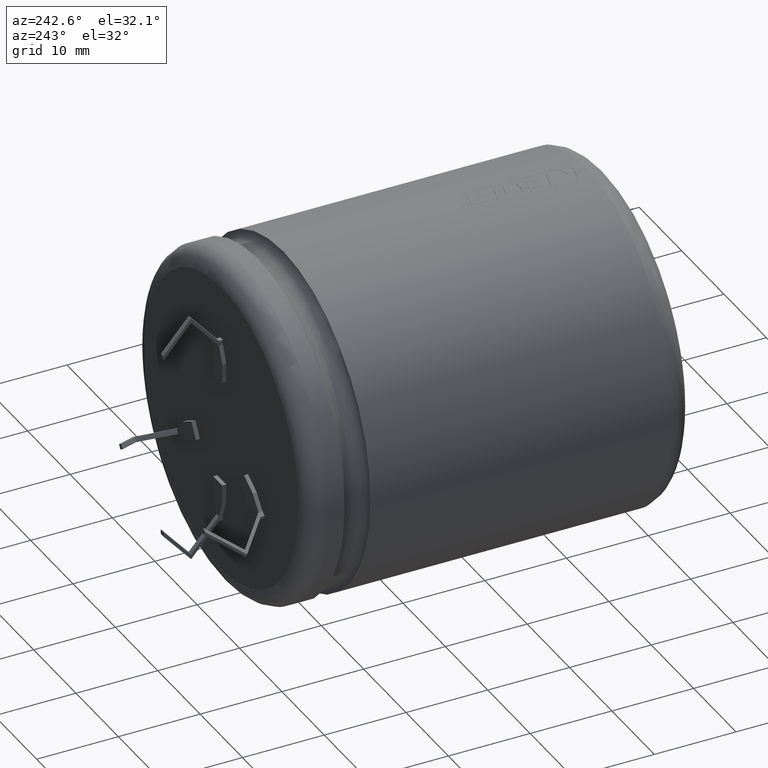
[diagram: clean part render]
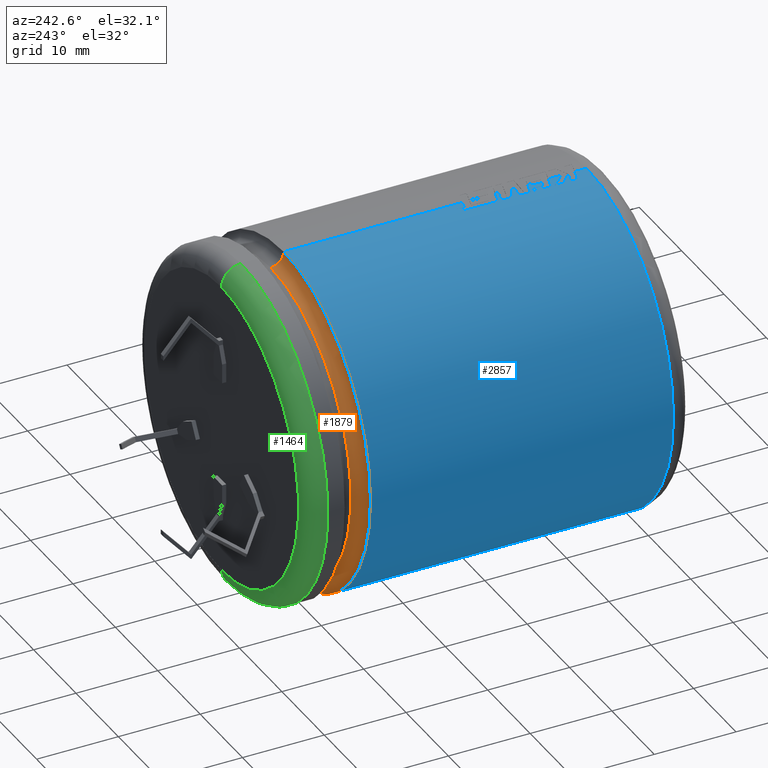
[diagram: same view with three faces highlighted in distinct colors, each labeled with its STEP entity id]
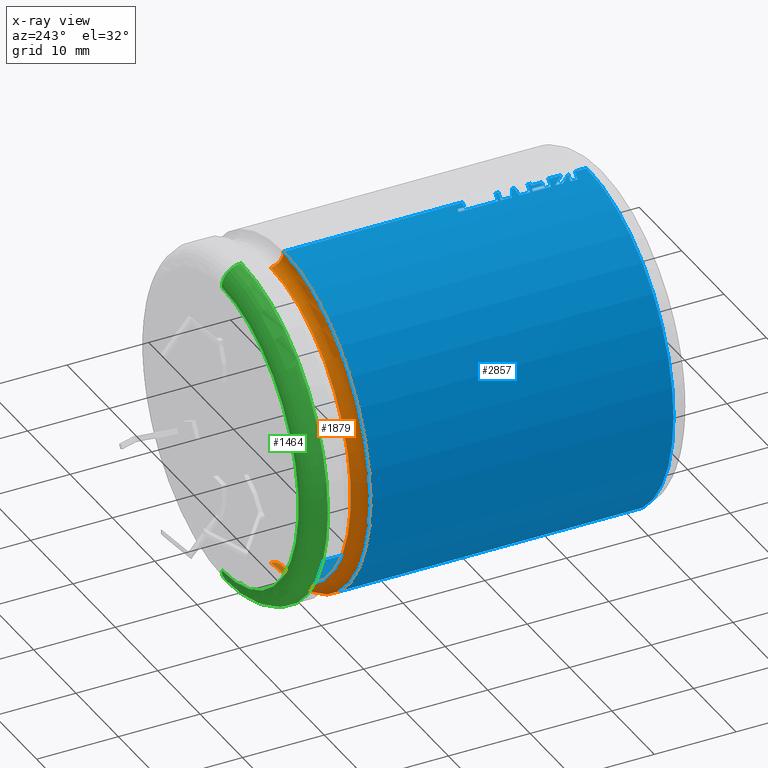
[diagram: x-ray of the same camera — body ghosted, the three highlighted faces saturated]
A machine part, auxiliary view with three faces highlighted in distinct colors.
The next image is the same camera in x-ray (body ghosted, the three faces saturated) — at least one of them is partly hidden behind the body in this view.
Their STEP definitions:

[orange] entity #1879 — the highlighted toroidal blend (fillet) surface has major radius 20.5 mm and minor (blend) radius 1.5769 mm.
#9 = CARTESIAN_POINT ( 'NONE',  ( 2.510525938252074500E-015, 41.00000000000000000, -20.50000000000000000 ) ) ;
#33 = CIRCLE ( 'NONE', #80, 1.576859999999999500 ) ;
#80 = AXIS2_PLACEMENT_3D ( 'NONE', #9, #3284, #3643 ) ;
#568 = DIRECTION ( 'NONE',  ( 0.0000000000000000000, 0.0000000000000000000, 1.000000000000000000 ) ) ;
#928 = CARTESIAN_POINT ( 'NONE',  ( 0.0000000000000000000, 41.00000000000000000, 0.0000000000000000000 ) ) ;
#1281 = DIRECTION ( 'NONE',  ( 0.0000000000000000000, 0.0000000000000000000, 1.000000000000000000 ) ) ;
#1462 = ORIENTED_EDGE ( 'NONE', *, *, #2010, .T. ) ;
#1493 = CARTESIAN_POINT ( 'NONE',  ( 2.510525938252074500E-015, 39.42314000000000400, -20.50000000000000400 ) ) ;
#1590 = ORIENTED_EDGE ( 'NONE', *, *, #2281, .T. ) ;
#1759 = ORIENTED_EDGE ( 'NONE', *, *, #4032, .F. ) ;
#1879 = ADVANCED_FACE ( 'NONE', ( #4172 ), #2539, .F. ) ;
#1962 = ORIENTED_EDGE ( 'NONE', *, *, #3610, .F. ) ;
#1984 = DIRECTION ( 'NONE',  ( 0.0000000000000000000, 0.0000000000000000000, 1.000000000000000000 ) ) ;
#2010 = EDGE_CURVE ( 'NONE', #2296, #4554, #3771, .T. ) ;
#2031 = DIRECTION ( 'NONE',  ( 0.0000000000000000000, 0.0000000000000000000, 1.000000000000000000 ) ) ;
#2281 = EDGE_CURVE ( 'NONE', #3419, #2296, #33, .T. ) ;
#2296 = VERTEX_POINT ( 'NONE', #1493 ) ;
#2361 = DIRECTION ( 'NONE',  ( -1.000000000000000000, 0.0000000000000000000, 0.0000000000000000000 ) ) ;
#2429 = CARTESIAN_POINT ( 'NONE',  ( 0.0000000000000000000, 41.00000000000000000, 20.50000000000000000 ) ) ;
#2432 = CIRCLE ( 'NONE', #4282, 18.92314000000000000 ) ;
#2539 = TOROIDAL_SURFACE ( 'NONE', #4017, 20.50000000000000000, 1.576859999999999500 ) ;
#2578 = CARTESIAN_POINT ( 'NONE',  ( 0.0000000000000000000, 41.00000000000000000, 18.92314000000000000 ) ) ;
#2616 = CIRCLE ( 'NONE', #4027, 1.576859999999999500 ) ;
#2707 = CARTESIAN_POINT ( 'NONE',  ( 0.0000000000000000000, 41.00000000000000000, 0.0000000000000000000 ) ) ;
#3021 = DIRECTION ( 'NONE',  ( -0.0000000000000000000, 1.000000000000000000, -0.0000000000000000000 ) ) ;
#3103 = DIRECTION ( 'NONE',  ( -0.0000000000000000000, 1.000000000000000000, -0.0000000000000000000 ) ) ;
#3284 = DIRECTION ( 'NONE',  ( 1.000000000000000000, 0.0000000000000000000, 1.224646799147353200E-016 ) ) ;
#3342 = VERTEX_POINT ( 'NONE', #2578 ) ;
#3419 = VERTEX_POINT ( 'NONE', #3911 ) ;
#3471 = DIRECTION ( 'NONE',  ( -0.0000000000000000000, 1.000000000000000000, -0.0000000000000000000 ) ) ;
#3610 = EDGE_CURVE ( 'NONE', #3342, #4554, #2616, .T. ) ;
#3643 = DIRECTION ( 'NONE',  ( 1.224646799147353900E-016, 0.0000000000000000000, -1.000000000000000000 ) ) ;
#3771 = CIRCLE ( 'NONE', #4599, 20.50000000000000400 ) ;
#3911 = CARTESIAN_POINT ( 'NONE',  ( 2.317416283081724500E-015, 41.00000000000000000, -18.92314000000000000 ) ) ;
#3978 = CARTESIAN_POINT ( 'NONE',  ( 0.0000000000000000000, 39.42314000000000400, 0.0000000000000000000 ) ) ;
#4017 = AXIS2_PLACEMENT_3D ( 'NONE', #2707, #3103, #568 ) ;
#4027 = AXIS2_PLACEMENT_3D ( 'NONE', #2429, #2361, #1281 ) ;
#4032 = EDGE_CURVE ( 'NONE', #3419, #3342, #2432, .T. ) ;
#4157 = EDGE_LOOP ( 'NONE', ( #1759, #1590, #1462, #1962 ) ) ;
#4172 = FACE_OUTER_BOUND ( 'NONE', #4157, .T. ) ;
#4282 = AXIS2_PLACEMENT_3D ( 'NONE', #928, #3471, #2031 ) ;
#4450 = CARTESIAN_POINT ( 'NONE',  ( 0.0000000000000000000, 39.42314000000000400, 20.50000000000000400 ) ) ;
#4554 = VERTEX_POINT ( 'NONE', #4450 ) ;
#4599 = AXIS2_PLACEMENT_3D ( 'NONE', #3978, #3021, #1984 ) ;

[blue] entity #2857 — the highlighted cylindrical surface (partial cylindrical patch) has radius 20.5 mm, axis along (-0, -1, -0).
#23 = LINE ( 'NONE', #2600, #1391 ) ;
#73 = CARTESIAN_POINT ( 'NONE',  ( -1.028105623805822200, 6.535161459936544400, 20.47938622012172900 ) ) ;
#107 = CARTESIAN_POINT ( 'NONE',  ( -0.1067635124500709000, 5.593961633424571600, 20.49972198719800400 ) ) ;
#111 = CARTESIAN_POINT ( 'NONE',  ( -0.9129696222697490900, 8.175099936300487300, 20.47966031136289900 ) ) ;
#117 = VERTEX_POINT ( 'NONE', #4685 ) ;
#122 = LINE ( 'NONE', #3037, #3861 ) ;
#128 = EDGE_CURVE ( 'NONE', #4360, #3270, #500, .T. ) ;
#134 = ORIENTED_EDGE ( 'NONE', *, *, #4077, .T. ) ;
#140 = ORIENTED_EDGE ( 'NONE', *, *, #2641, .F. ) ;
#142 = LINE ( 'NONE', #4209, #1627 ) ;
#148 = B_SPLINE_CURVE_WITH_KNOTS ( 'NONE', 3,
 ( #1890, #2632, #2275, #111 ),
 .UNSPECIFIED., .F., .F.,
 ( 4, 4 ),
 ( 0.0000000000000000000, 1.000000000000000000 ),
 .UNSPECIFIED. ) ;
#166 = DIRECTION ( 'NONE',  ( 0.0000000000000000000, 0.0000000000000000000, 1.000000000000000000 ) ) ;
#180 = DIRECTION ( 'NONE',  ( 0.0000000000000000000, 1.000000000000000000, 0.0000000000000000000 ) ) ;
#226 = B_SPLINE_CURVE_WITH_KNOTS ( 'NONE', 3,
 ( #3956, #332, #2890, #1061 ),
 .UNSPECIFIED., .F., .F.,
 ( 4, 4 ),
 ( 0.3725967474865820000, 1.000000000000000000 ),
 .UNSPECIFIED. ) ;
#286 = DIRECTION ( 'NONE',  ( -0.0000000000000000000, -1.000000000000000000, -0.0000000000000000000 ) ) ;
#318 = DIRECTION ( 'NONE',  ( 0.0000000000000000000, -1.000000000000000000, 0.0000000000000000000 ) ) ;
#332 = CARTESIAN_POINT ( 'NONE',  ( -0.1169219906838778200, 9.242661177577039300, 20.49999996244456900 ) ) ;
#333 = CARTESIAN_POINT ( 'NONE',  ( -1.487609038079153600, 7.005761591733911300, 20.44595361801022200 ) ) ;
#339 = EDGE_CURVE ( 'NONE', #2748, #4339, #148, .T. ) ;
#343 = CARTESIAN_POINT ( 'NONE',  ( -0.9129696222697449800, 9.552968582505579700, 20.47966031136289900 ) ) ;
#401 = VECTOR ( 'NONE', #3457, 1000.000000000000000 ) ;
#409 = CARTESIAN_POINT ( 'NONE',  ( -1.487609038079157800, 11.30602379685902100, 20.44595361801022200 ) ) ;
#419 = FACE_OUTER_BOUND ( 'NONE', #613, .T. ) ;
#439 = EDGE_CURVE ( 'NONE', #3169, #1323, #3812, .T. ) ;
#448 = CARTESIAN_POINT ( 'NONE',  ( -1.487609038079153600, 13.95202954761076000, 20.44595361801022200 ) ) ;
#450 = VERTEX_POINT ( 'NONE', #1266 ) ;
#454 = VERTEX_POINT ( 'NONE', #4536 ) ;
#460 = EDGE_CURVE ( 'NONE', #703, #2582, #908, .T. ) ;
#465 = B_SPLINE_CURVE_WITH_KNOTS ( 'NONE', 3,
 ( #2264, #518, #4115, #2658 ),
 .UNSPECIFIED., .F., .F.,
 ( 4, 4 ),
 ( 0.0000000000000000000, 0.6080032361089903200 ),
 .UNSPECIFIED. ) ;
#476 = ORIENTED_EDGE ( 'NONE', *, *, #956, .F. ) ;
#479 = EDGE_CURVE ( 'NONE', #980, #4556, #226, .T. ) ;
#485 = VERTEX_POINT ( 'NONE', #2481 ) ;
#495 = EDGE_CURVE ( 'NONE', #485, #3749, #2173, .T. ) ;
#500 = B_SPLINE_CURVE_WITH_KNOTS ( 'NONE', 3,
 ( #3968, #2182, #3216, #4654 ),
 .UNSPECIFIED., .F., .F.,
 ( 4, 4 ),
 ( 0.5076699967697234600, 1.000000000000000000 ),
 .UNSPECIFIED. ) ;
#504 = DIRECTION ( 'NONE',  ( -0.0000000000000000000, -1.000000000000000000, -0.0000000000000000000 ) ) ;
#507 = CARTESIAN_POINT ( 'NONE',  ( -1.487609038079157800, 6.010516738381370200, 20.44595361801022200 ) ) ;
#510 = VECTOR ( 'NONE', #3892, 1000.000000000000000 ) ;
#513 = CARTESIAN_POINT ( 'NONE',  ( -0.9046580500798570000, 18.36304375062565700, 20.48002914580215600 ) ) ;
#518 = CARTESIAN_POINT ( 'NONE',  ( -0.9926085831754791800, 9.875454890744265400, 20.48196891787471000 ) ) ;
#552 = VECTOR ( 'NONE', #1270, 1000.000000000000000 ) ;
#575 = AXIS2_PLACEMENT_3D ( 'NONE', #1287, #180, #166 ) ;
#613 = EDGE_LOOP ( 'NONE', ( #4682, #3252, #134, #2117, #1541, #2060, #3660, #3238, #1791, #2009, #1521, #4118, #3127, #1846, #2879, #985, #1016, #2287, #4236, #2179, #2844, #2190, #866, #4598, #476, #1672, #3665, #979, #4161, #1532, #966, #140, #749, #2186, #4224 ) ) ;
#646 = CARTESIAN_POINT ( 'NONE',  ( 1.471812186023763900E-010, 11.22587473860311000, 20.49999762134849800 ) ) ;
#653 = CARTESIAN_POINT ( 'NONE',  ( -2.643937846699079000E-010, 5.638215953928428400, 20.49999993557945300 ) ) ;
#679 = AXIS2_PLACEMENT_3D ( 'NONE', #2847, #3194, #1403 ) ;
#699 = EDGE_CURVE ( 'NONE', #1622, #980, #4270, .T. ) ;
#703 = VERTEX_POINT ( 'NONE', #507 ) ;
#712 = LINE ( 'NONE', #3491, #4520 ) ;
#718 = CARTESIAN_POINT ( 'NONE',  ( -0.4963025240457447600, 3.948561447790766000, 20.49997595640897100 ) ) ;
#719 = EDGE_CURVE ( 'NONE', #117, #1145, #1950, .T. ) ;
#747 = CARTESIAN_POINT ( 'NONE',  ( -0.9047018301075023800, 17.81104015329510700, 20.48002721186180600 ) ) ;
#749 = ORIENTED_EDGE ( 'NONE', *, *, #2828, .F. ) ;
#767 = CARTESIAN_POINT ( 'NONE',  ( -0.6291296488335942300, 4.848472119278111100, 20.49485288890772900 ) ) ;
#779 = CARTESIAN_POINT ( 'NONE',  ( -0.3016642911070740500, 17.63762562176105300, 20.49999335003713000 ) ) ;
#811 = CARTESIAN_POINT ( 'NONE',  ( -0.4963025246847517200, 7.196632058551653400, 20.49997595627064600 ) ) ;
#818 = CARTESIAN_POINT ( 'NONE',  ( -0.1067635124500709000, 5.593961633424571600, 20.49972198719800400 ) ) ;
#827 = CARTESIAN_POINT ( 'NONE',  ( -0.4963054917962673700, 11.25259107606801300, 20.49999138178590700 ) ) ;
#835 = CARTESIAN_POINT ( 'NONE',  ( -1.487609038079157800, 9.716464161382790000, 20.44595361801022200 ) ) ;
#858 = VERTEX_POINT ( 'NONE', #1969 ) ;
#866 = ORIENTED_EDGE ( 'NONE', *, *, #2304, .F. ) ;
#873 = CARTESIAN_POINT ( 'NONE',  ( -0.9926051864990487200, 7.339448020672878500, 20.48196916501047900 ) ) ;
#876 = CARTESIAN_POINT ( 'NONE',  ( -1.487609038079153600, 13.58768636036116600, 20.44595361801022200 ) ) ;
#895 = CARTESIAN_POINT ( 'NONE',  ( -1.058859867029085900, 5.582093237255673300, 20.47714859936639800 ) ) ;
#908 = B_SPLINE_CURVE_WITH_KNOTS ( 'NONE', 3,
 ( #1235, #895, #1952, #4484 ),
 .UNSPECIFIED., .F., .F.,
 ( 4, 4 ),
 ( 0.0000000000000000000, 1.000000000000000000 ),
 .UNSPECIFIED. ) ;
#920 = VERTEX_POINT ( 'NONE', #646 ) ;
#924 = DIRECTION ( 'NONE',  ( 0.0000000000000000000, -1.000000000000000000, 0.0000000000000000000 ) ) ;
#945 = LINE ( 'NONE', #2078, #510 ) ;
#956 = EDGE_CURVE ( 'NONE', #2303, #920, #3418, .T. ) ;
#960 = CARTESIAN_POINT ( 'NONE',  ( -1.487609038079157800, 13.58768636036117300, 20.44595361801022200 ) ) ;
#966 = ORIENTED_EDGE ( 'NONE', *, *, #3365, .F. ) ;
#979 = ORIENTED_EDGE ( 'NONE', *, *, #128, .F. ) ;
#980 = VERTEX_POINT ( 'NONE', #3309 ) ;
#985 = ORIENTED_EDGE ( 'NONE', *, *, #3732, .F. ) ;
#995 = EDGE_CURVE ( 'NONE', #4556, #2748, #2446, .T. ) ;
#999 = B_SPLINE_CURVE_WITH_KNOTS ( 'NONE', 3,
 ( #3032, #827, #3788, #1228 ),
 .UNSPECIFIED., .F., .F.,
 ( 4, 4 ),
 ( 0.3108603276531526300, 1.000000000000000000 ),
 .UNSPECIFIED. ) ;
#1010 = CARTESIAN_POINT ( 'NONE',  ( -1.104661260160902700, 9.607467109760246900, 20.47111482576513800 ) ) ;
#1013 = DIRECTION ( 'NONE',  ( -0.0000000000000000000, -1.000000000000000000, -0.0000000000000000000 ) ) ;
#1016 = ORIENTED_EDGE ( 'NONE', *, *, #3791, .F. ) ;
#1020 = CARTESIAN_POINT ( 'NONE',  ( 3.908052195523174700E-009, 9.590142117467486600, 20.49999515539574400 ) ) ;
#1022 = VERTEX_POINT ( 'NONE', #409 ) ;
#1028 = CARTESIAN_POINT ( 'NONE',  ( 2.510525938252074500E-015, 47.00000000000000000, 20.50000000000000000 ) ) ;
#1037 = B_SPLINE_CURVE_WITH_KNOTS ( 'NONE', 3,
 ( #3111, #873, #811, #2521 ),
 .UNSPECIFIED., .F., .F.,
 ( 4, 4 ),
 ( 0.0000000000000000000, 0.4923300032358752800 ),
 .UNSPECIFIED. ) ;
#1055 = EDGE_CURVE ( 'NONE', #3749, #3334, #3260, .T. ) ;
#1061 = CARTESIAN_POINT ( 'NONE',  ( -0.3507488586148771500, 9.309453963844880800, 20.49699917642044200 ) ) ;
#1096 = CARTESIAN_POINT ( 'NONE',  ( 7.579655226571244900E-009, 11.52282658626166300, 20.49999761387757100 ) ) ;
#1145 = VERTEX_POINT ( 'NONE', #2730 ) ;
#1164 = CARTESIAN_POINT ( 'NONE',  ( -0.9046361600637224900, 18.63904554929093000, 20.48003011271968900 ) ) ;
#1165 = CARTESIAN_POINT ( 'NONE',  ( -0.6033290408717265600, 17.72433261819312400, 20.49334030520615000 ) ) ;
#1228 = CARTESIAN_POINT ( 'NONE',  ( -1.487609038079157800, 11.30602379685902100, 20.44595361801022200 ) ) ;
#1235 = CARTESIAN_POINT ( 'NONE',  ( -1.487609038079157800, 6.010516738381370200, 20.44595361801022200 ) ) ;
#1242 = VERTEX_POINT ( 'NONE', #1623 ) ;
#1246 = CARTESIAN_POINT ( 'NONE',  ( -1.058859780637153600, 4.971697530779608500, 20.47714860565210800 ) ) ;
#1266 = CARTESIAN_POINT ( 'NONE',  ( -1.487609038079157800, 18.80687351959830500, 20.44595361801022200 ) ) ;
#1270 = DIRECTION ( 'NONE',  ( -0.0000000000000000000, -1.000000000000000000, -0.0000000000000000000 ) ) ;
#1277 = CARTESIAN_POINT ( 'NONE',  ( -0.9046361600637224900, 18.63904554929093000, 20.48003011271968900 ) ) ;
#1287 = CARTESIAN_POINT ( 'NONE',  ( 0.0000000000000000000, 2.361599999999998400, 0.0000000000000000000 ) ) ;
#1310 = CARTESIAN_POINT ( 'NONE',  ( -0.9047018301075023800, 17.81104015329510700, 20.48002721186180600 ) ) ;
#1323 = VERTEX_POINT ( 'NONE', #2087 ) ;
#1335 = B_SPLINE_CURVE_WITH_KNOTS ( 'NONE', 3,
 ( #343, #1010, #3914, #4272 ),
 .UNSPECIFIED., .F., .F.,
 ( 4, 4 ),
 ( 0.0000000000000000000, 1.000000000000000000 ),
 .UNSPECIFIED. ) ;
#1391 = VECTOR ( 'NONE', #1905, 1000.000000000000000 ) ;
#1397 = VECTOR ( 'NONE', #318, 1000.000000000000000 ) ;
#1403 = DIRECTION ( 'NONE',  ( 0.0000000000000000000, 0.0000000000000000000, -1.000000000000000000 ) ) ;
#1417 = LINE ( 'NONE', #4574, #552 ) ;
#1433 = CARTESIAN_POINT ( 'NONE',  ( -0.9926051852536264000, 4.091190285856317400, 20.48196916510109500 ) ) ;
#1458 = B_SPLINE_CURVE_WITH_KNOTS ( 'NONE', 3,
 ( #2584, #1825, #4365, #1096 ),
 .UNSPECIFIED., .F., .F.,
 ( 4, 4 ),
 ( 0.0000000000000000000, 0.6891396211990040700 ),
 .UNSPECIFIED. ) ;
#1468 = EDGE_CURVE ( 'NONE', #1579, #3543, #3438, .T. ) ;
#1478 = EDGE_CURVE ( 'NONE', #1323, #485, #1037, .T. ) ;
#1488 = CARTESIAN_POINT ( 'NONE',  ( -0.9926051860871325500, 13.80927270982354400, 20.48196916504045000 ) ) ;
#1493 = CARTESIAN_POINT ( 'NONE',  ( 2.510525938252074500E-015, 39.42314000000000400, -20.50000000000000400 ) ) ;
#1501 = CARTESIAN_POINT ( 'NONE',  ( -0.1992673543678380700, 4.725246544320424600, 20.49903150203646300 ) ) ;
#1521 = ORIENTED_EDGE ( 'NONE', *, *, #4551, .F. ) ;
#1532 = ORIENTED_EDGE ( 'NONE', *, *, #3897, .F. ) ;
#1541 = ORIENTED_EDGE ( 'NONE', *, *, #1862, .F. ) ;
#1542 = DIRECTION ( 'NONE',  ( -0.0000000000000000000, -1.000000000000000000, -0.0000000000000000000 ) ) ;
#1579 = VERTEX_POINT ( 'NONE', #3222 ) ;
#1596 = CARTESIAN_POINT ( 'NONE',  ( -1.487609038079157800, 16.19708683617947300, 20.44595361801022200 ) ) ;
#1604 = VECTOR ( 'NONE', #924, 1000.000000000000000 ) ;
#1612 = LINE ( 'NONE', #4358, #3746 ) ;
#1622 = VERTEX_POINT ( 'NONE', #1020 ) ;
#1623 = CARTESIAN_POINT ( 'NONE',  ( -1.487609038079153600, 10.01811258485629700, 20.44595361801022200 ) ) ;
#1627 = VECTOR ( 'NONE', #3596, 1000.000000000000000 ) ;
#1658 = LINE ( 'NONE', #960, #1604 ) ;
#1672 = ORIENTED_EDGE ( 'NONE', *, *, #3120, .F. ) ;
#1727 = CARTESIAN_POINT ( 'NONE',  ( -1.487609038079157800, 9.716464161382790000, 20.44595361801022200 ) ) ;
#1791 = ORIENTED_EDGE ( 'NONE', *, *, #460, .F. ) ;
#1825 = CARTESIAN_POINT ( 'NONE',  ( -0.9926099529035984400, 12.01512873713159200, 20.48196881821586900 ) ) ;
#1846 = ORIENTED_EDGE ( 'NONE', *, *, #1478, .F. ) ;
#1853 = CARTESIAN_POINT ( 'NONE',  ( -0.3507488586148771500, 9.309453963844880800, 20.49699917642044200 ) ) ;
#1862 = EDGE_CURVE ( 'NONE', #3163, #1145, #1417, .T. ) ;
#1880 = CARTESIAN_POINT ( 'NONE',  ( -0.5674753198207993500, 6.064561765221938600, 20.49732257852247100 ) ) ;
#1883 = CARTESIAN_POINT ( 'NONE',  ( -0.03558799084967651000, 5.623464516997630700, 20.49999995108428100 ) ) ;
#1890 = CARTESIAN_POINT ( 'NONE',  ( -0.3507488586148730900, 8.011420447885997800, 20.49699917642044200 ) ) ;
#1902 = CARTESIAN_POINT ( 'NONE',  ( -0.07117598858856683000, 5.608713076750726500, 20.49990732868943200 ) ) ;
#1905 = DIRECTION ( 'NONE',  ( 0.0000000000000000000, -1.000000000000000000, 0.0000000000000000000 ) ) ;
#1939 = EDGE_CURVE ( 'NONE', #858, #454, #712, .T. ) ;
#1950 = CIRCLE ( 'NONE', #575, 20.50000000000000000 ) ;
#1952 = CARTESIAN_POINT ( 'NONE',  ( -0.6291295622173890300, 5.153670045446123300, 20.49485288974971200 ) ) ;
#1969 = CARTESIAN_POINT ( 'NONE',  ( -1.487609038079153600, 5.094923105737295000, 20.44595361801022200 ) ) ;
#1984 = DIRECTION ( 'NONE',  ( 0.0000000000000000000, 0.0000000000000000000, 1.000000000000000000 ) ) ;
#2009 = ORIENTED_EDGE ( 'NONE', *, *, #3139, .F. ) ;
#2010 = EDGE_CURVE ( 'NONE', #2296, #4554, #3771, .T. ) ;
#2041 = CARTESIAN_POINT ( 'NONE',  ( -0.9046799400944503000, 18.08704195196038000, 20.48002817884953000 ) ) ;
#2051 = CARTESIAN_POINT ( 'NONE',  ( -1.487609038079157800, 18.80687351959830500, 20.44595361801022200 ) ) ;
#2060 = ORIENTED_EDGE ( 'NONE', *, *, #4271, .F. ) ;
#2078 = CARTESIAN_POINT ( 'NONE',  ( 2.510525938252074500E-015, 47.00000000000000000, 20.50000000000000000 ) ) ;
#2087 = CARTESIAN_POINT ( 'NONE',  ( -1.487609038079153600, 7.482266731005854200, 20.44595361801022200 ) ) ;
#2113 = DIRECTION ( 'NONE',  ( 0.0000000000000000000, 1.000000000000000000, 0.0000000000000000000 ) ) ;
#2117 = ORIENTED_EDGE ( 'NONE', *, *, #719, .T. ) ;
#2173 = LINE ( 'NONE', #2444, #2339 ) ;
#2179 = ORIENTED_EDGE ( 'NONE', *, *, #479, .F. ) ;
#2182 = CARTESIAN_POINT ( 'NONE',  ( -0.4963025242569630300, 13.30230219500782100, 20.49997595636325100 ) ) ;
#2186 = ORIENTED_EDGE ( 'NONE', *, *, #1468, .F. ) ;
#2190 = ORIENTED_EDGE ( 'NONE', *, *, #2461, .F. ) ;
#2213 = DIRECTION ( 'NONE',  ( 0.0000000000000000000, -1.000000000000000000, 0.0000000000000000000 ) ) ;
#2264 = CARTESIAN_POINT ( 'NONE',  ( -1.487609038079153600, 10.01811258485629700, 20.44595361801022200 ) ) ;
#2275 = CARTESIAN_POINT ( 'NONE',  ( -0.7256537510520156800, 8.120540105953825400, 20.48801072819554000 ) ) ;
#2285 = VECTOR ( 'NONE', #3425, 1000.000000000000000 ) ;
#2287 = ORIENTED_EDGE ( 'NONE', *, *, #339, .F. ) ;
#2296 = VERTEX_POINT ( 'NONE', #1493 ) ;
#2303 = VERTEX_POINT ( 'NONE', #4129 ) ;
#2304 = EDGE_CURVE ( 'NONE', #1022, #1242, #142, .T. ) ;
#2330 = CARTESIAN_POINT ( 'NONE',  ( 0.0000000000000000000, 47.00000000000000000, -20.50000000000000000 ) ) ;
#2333 = CARTESIAN_POINT ( 'NONE',  ( -0.1992673543678380700, 4.725246544320424600, 20.49903150203646300 ) ) ;
#2339 = VECTOR ( 'NONE', #286, 1000.000000000000000 ) ;
#2374 = CARTESIAN_POINT ( 'NONE',  ( -1.099109105354242800, 18.69498820710444400, 20.47143992718306300 ) ) ;
#2395 = CARTESIAN_POINT ( 'NONE',  ( -8.792308065682244700E-010, 3.805932654816541700, 20.49998773084443100 ) ) ;
#2436 = VECTOR ( 'NONE', #1013, 1000.000000000000000 ) ;
#2444 = CARTESIAN_POINT ( 'NONE',  ( 2.510525938252074500E-015, 47.00000000000000000, 20.50000000000000000 ) ) ;
#2446 = LINE ( 'NONE', #1853, #4500 ) ;
#2461 = EDGE_CURVE ( 'NONE', #1242, #1622, #465, .T. ) ;
#2472 = CARTESIAN_POINT ( 'NONE',  ( -8.806168523602534100E-010, 13.52376457376976600, 20.49998773079722600 ) ) ;
#2481 = CARTESIAN_POINT ( 'NONE',  ( -8.813040468022290400E-010, 7.053816141572130300, 20.49998773077389600 ) ) ;
#2511 = CYLINDRICAL_SURFACE ( 'NONE', #679, 20.50000000000000000 ) ;
#2520 = CARTESIAN_POINT ( 'NONE',  ( -8.792308065682244700E-010, 3.805932654816541700, 20.49998773084443100 ) ) ;
#2521 = CARTESIAN_POINT ( 'NONE',  ( -8.813040468022290400E-010, 7.053816141572130300, 20.49998773077389600 ) ) ;
#2550 = CARTESIAN_POINT ( 'NONE',  ( -0.4963025244734039500, 13.66651861923412900, 20.49997595631639100 ) ) ;
#2565 = CARTESIAN_POINT ( 'NONE',  ( -4.398884928757369000E-009, 17.55091877952357700, 20.49999542117415900 ) ) ;
#2567 = CARTESIAN_POINT ( 'NONE',  ( -1.487609038079157800, 4.233821869066400900, 20.44595361801022200 ) ) ;
#2581 = B_SPLINE_CURVE_WITH_KNOTS ( 'NONE', 3,
 ( #448, #1488, #2550, #3634 ),
 .UNSPECIFIED., .F., .F.,
 ( 4, 4 ),
 ( 0.0000000000000000000, 0.4923300032331091000 ),
 .UNSPECIFIED. ) ;
#2582 = VERTEX_POINT ( 'NONE', #2333 ) ;
#2584 = CARTESIAN_POINT ( 'NONE',  ( -1.487609038079153600, 12.26128104296442300, 20.44595361801022200 ) ) ;
#2600 = CARTESIAN_POINT ( 'NONE',  ( -1.487609038079157800, 7.005761591733911300, 20.44595361801022200 ) ) ;
#2606 = CARTESIAN_POINT ( 'NONE',  ( -0.3507488586148771500, 9.309453963844880800, 20.49699917642044200 ) ) ;
#2632 = CARTESIAN_POINT ( 'NONE',  ( -0.5382233186258136300, 8.065980278232652600, 20.49379107496606500 ) ) ;
#2639 = CARTESIAN_POINT ( 'NONE',  ( -1.487609038079153600, 7.005761591733911300, 20.44595361801022200 ) ) ;
#2641 = EDGE_CURVE ( 'NONE', #450, #4455, #3380, .T. ) ;
#2658 = CARTESIAN_POINT ( 'NONE',  ( 3.908052195523174700E-009, 9.590142117467486600, 20.49999515539574400 ) ) ;
#2686 = B_SPLINE_CURVE_WITH_KNOTS ( 'NONE', 3,
 ( #4552, #2374, #4217, #2051 ),
 .UNSPECIFIED., .F., .F.,
 ( 4, 4 ),
 ( 0.0000000000000000000, 1.000000000000000000 ),
 .UNSPECIFIED. ) ;
#2730 = CARTESIAN_POINT ( 'NONE',  ( 0.0000000000000000000, 2.361599999999998400, 20.49999999999999600 ) ) ;
#2748 = VERTEX_POINT ( 'NONE', #3175 ) ;
#2817 = CARTESIAN_POINT ( 'NONE',  ( -1.487609038079153600, 13.95202954761076000, 20.44595361801022200 ) ) ;
#2828 = EDGE_CURVE ( 'NONE', #3543, #450, #2686, .T. ) ;
#2844 = ORIENTED_EDGE ( 'NONE', *, *, #699, .F. ) ;
#2847 = CARTESIAN_POINT ( 'NONE',  ( 0.0000000000000000000, 47.00000000000000000, 0.0000000000000000000 ) ) ;
#2857 = ADVANCED_FACE ( 'NONE', ( #419 ), #2511, .T. ) ;
#2879 = ORIENTED_EDGE ( 'NONE', *, *, #439, .F. ) ;
#2887 = DIRECTION ( 'NONE',  ( 0.0000000000000000000, -1.000000000000000000, 0.0000000000000000000 ) ) ;
#2890 = CARTESIAN_POINT ( 'NONE',  ( -0.2338439805220739200, 9.276057570217597400, 20.49899967669878000 ) ) ;
#2938 = CARTESIAN_POINT ( 'NONE',  ( -0.1067635124500709000, 5.593961633424571600, 20.49972198719800400 ) ) ;
#2961 = EDGE_CURVE ( 'NONE', #920, #1022, #999, .T. ) ;
#2993 = CARTESIAN_POINT ( 'NONE',  ( -8.799123513410994900E-010, 13.15961153051858200, 20.49998773082111500 ) ) ;
#3021 = DIRECTION ( 'NONE',  ( -0.0000000000000000000, 1.000000000000000000, -0.0000000000000000000 ) ) ;
#3032 = CARTESIAN_POINT ( 'NONE',  ( 1.471812186023763900E-010, 11.22587473860311000, 20.49999762134849800 ) ) ;
#3037 = CARTESIAN_POINT ( 'NONE',  ( 2.510525938252074500E-015, 47.00000000000000000, 20.50000000000000000 ) ) ;
#3053 = CARTESIAN_POINT ( 'NONE',  ( -0.9129696222697449800, 9.552968582505579700, 20.47966031136289900 ) ) ;
#3111 = CARTESIAN_POINT ( 'NONE',  ( -1.487609038079153600, 7.482266731005854200, 20.44595361801022200 ) ) ;
#3120 = EDGE_CURVE ( 'NONE', #4672, #2303, #1458, .T. ) ;
#3127 = ORIENTED_EDGE ( 'NONE', *, *, #495, .F. ) ;
#3139 = EDGE_CURVE ( 'NONE', #3496, #703, #23, .T. ) ;
#3163 = VERTEX_POINT ( 'NONE', #2395 ) ;
#3169 = VERTEX_POINT ( 'NONE', #1727 ) ;
#3175 = CARTESIAN_POINT ( 'NONE',  ( -0.3507488586148730900, 8.011420447885997800, 20.49699917642044200 ) ) ;
#3193 = LINE ( 'NONE', #2330, #401 ) ;
#3194 = DIRECTION ( 'NONE',  ( -0.0000000000000000000, -1.000000000000000000, -0.0000000000000000000 ) ) ;
#3196 = VECTOR ( 'NONE', #2113, 1000.000000000000000 ) ;
#3216 = CARTESIAN_POINT ( 'NONE',  ( -0.9926051856652918800, 13.44499290460504200, 20.48196916507114200 ) ) ;
#3222 = CARTESIAN_POINT ( 'NONE',  ( -0.9047018301075023800, 17.81104015329510700, 20.48002721186180600 ) ) ;
#3230 = B_SPLINE_CURVE_WITH_KNOTS ( 'NONE', 3,
 ( #2565, #779, #1165, #747 ),
 .UNSPECIFIED., .F., .F.,
 ( 4, 4 ),
 ( 0.6291467272315018900, 1.000000000000000000 ),
 .UNSPECIFIED. ) ;
#3238 = ORIENTED_EDGE ( 'NONE', *, *, #3973, .F. ) ;
#3250 = CARTESIAN_POINT ( 'NONE',  ( -0.9129696222697490900, 8.175099936300487300, 20.47966031136289900 ) ) ;
#3252 = ORIENTED_EDGE ( 'NONE', *, *, #2010, .F. ) ;
#3260 = B_SPLINE_CURVE_WITH_KNOTS ( 'NONE', 3,
 ( #4065, #1883, #1902, #107 ),
 .UNSPECIFIED., .F., .F.,
 ( 4, 4 ),
 ( 0.9349822453035103700, 1.000000000000000000 ),
 .UNSPECIFIED. ) ;
#3270 = VERTEX_POINT ( 'NONE', #876 ) ;
#3292 = VERTEX_POINT ( 'NONE', #3836 ) ;
#3309 = CARTESIAN_POINT ( 'NONE',  ( 2.709124727651031800E-012, 9.209264784675582400, 20.49999998710253700 ) ) ;
#3334 = VERTEX_POINT ( 'NONE', #2938 ) ;
#3362 = CARTESIAN_POINT ( 'NONE',  ( -0.9129696222697490900, 8.175099936300487300, 20.47966031136289900 ) ) ;
#3365 = EDGE_CURVE ( 'NONE', #4455, #4176, #1612, .T. ) ;
#3376 = B_SPLINE_CURVE_WITH_KNOTS ( 'NONE', 3,
 ( #2567, #1433, #718, #2520 ),
 .UNSPECIFIED., .F., .F.,
 ( 4, 4 ),
 ( 0.0000000000000000000, 0.4923300032275113000 ),
 .UNSPECIFIED. ) ;
#3380 = LINE ( 'NONE', #3796, #1397 ) ;
#3418 = LINE ( 'NONE', #1028, #2436 ) ;
#3425 = DIRECTION ( 'NONE',  ( 0.0000000000000000000, -1.000000000000000000, 0.0000000000000000000 ) ) ;
#3426 = VERTEX_POINT ( 'NONE', #2472 ) ;
#3438 = B_SPLINE_CURVE_WITH_KNOTS ( 'NONE', 3,
 ( #1310, #2041, #513, #1277 ),
 .UNSPECIFIED., .F., .F.,
 ( 4, 4 ),
 ( 0.0000000000000000000, 1.000000000000000000 ),
 .UNSPECIFIED. ) ;
#3457 = DIRECTION ( 'NONE',  ( -0.0000000000000000000, -1.000000000000000000, -0.0000000000000000000 ) ) ;
#3491 = CARTESIAN_POINT ( 'NONE',  ( -1.487609038079157800, 5.094923105737295000, 20.44595361801022200 ) ) ;
#3496 = VERTEX_POINT ( 'NONE', #333 ) ;
#3504 = CARTESIAN_POINT ( 'NONE',  ( -1.487609038079153600, 5.094923105737295000, 20.44595361801022200 ) ) ;
#3506 = CARTESIAN_POINT ( 'NONE',  ( -1.487609038079153600, 12.26128104296442300, 20.44595361801022200 ) ) ;
#3543 = VERTEX_POINT ( 'NONE', #1164 ) ;
#3563 = VERTEX_POINT ( 'NONE', #3053 ) ;
#3578 = EDGE_CURVE ( 'NONE', #4554, #3292, #122, .T. ) ;
#3596 = DIRECTION ( 'NONE',  ( 0.0000000000000000000, -1.000000000000000000, 0.0000000000000000000 ) ) ;
#3615 = EDGE_CURVE ( 'NONE', #3270, #4672, #1658, .T. ) ;
#3634 = CARTESIAN_POINT ( 'NONE',  ( -8.806168523602534100E-010, 13.52376457376976600, 20.49998773079722600 ) ) ;
#3660 = ORIENTED_EDGE ( 'NONE', *, *, #1939, .F. ) ;
#3665 = ORIENTED_EDGE ( 'NONE', *, *, #3615, .F. ) ;
#3685 = CARTESIAN_POINT ( 'NONE',  ( 2.510525938252074500E-015, 47.00000000000000000, 20.50000000000000000 ) ) ;
#3732 = EDGE_CURVE ( 'NONE', #3563, #3169, #1335, .T. ) ;
#3746 = VECTOR ( 'NONE', #2887, 1000.000000000000000 ) ;
#3749 = VERTEX_POINT ( 'NONE', #653 ) ;
#3771 = CIRCLE ( 'NONE', #4599, 20.50000000000000400 ) ;
#3788 = CARTESIAN_POINT ( 'NONE',  ( -0.9926095621156367800, 11.27930733385464500, 20.48196884664886900 ) ) ;
#3791 = EDGE_CURVE ( 'NONE', #4339, #3563, #4019, .T. ) ;
#3796 = CARTESIAN_POINT ( 'NONE',  ( -1.487609038079157800, 18.80687351959830500, 20.44595361801022200 ) ) ;
#3812 = LINE ( 'NONE', #835, #2285 ) ;
#3836 = CARTESIAN_POINT ( 'NONE',  ( -4.398884928757369000E-009, 17.55091877952357700, 20.49999542117415900 ) ) ;
#3845 = DIRECTION ( 'NONE',  ( 0.0000000000000000000, -1.000000000000000000, 0.0000000000000000000 ) ) ;
#3861 = VECTOR ( 'NONE', #504, 1000.000000000000000 ) ;
#3892 = DIRECTION ( 'NONE',  ( -0.0000000000000000000, -1.000000000000000000, -0.0000000000000000000 ) ) ;
#3897 = EDGE_CURVE ( 'NONE', #4176, #3426, #2581, .T. ) ;
#3914 = CARTESIAN_POINT ( 'NONE',  ( -1.296232898158101500, 9.661965634128122800, 20.45987778514559700 ) ) ;
#3951 = EDGE_CURVE ( 'NONE', #3292, #1579, #3230, .T. ) ;
#3956 = CARTESIAN_POINT ( 'NONE',  ( 2.709124727651031800E-012, 9.209264784675582400, 20.49999998710253700 ) ) ;
#3968 = CARTESIAN_POINT ( 'NONE',  ( -8.799123513410994900E-010, 13.15961153051858200, 20.49998773082111500 ) ) ;
#3973 = EDGE_CURVE ( 'NONE', #2582, #858, #4639, .T. ) ;
#3978 = CARTESIAN_POINT ( 'NONE',  ( 0.0000000000000000000, 39.42314000000000400, 0.0000000000000000000 ) ) ;
#3981 = VECTOR ( 'NONE', #1542, 1000.000000000000000 ) ;
#4019 = LINE ( 'NONE', #3250, #3196 ) ;
#4065 = CARTESIAN_POINT ( 'NONE',  ( -2.643937846699079000E-010, 5.638215953928428400, 20.49999993557945300 ) ) ;
#4068 = EDGE_CURVE ( 'NONE', #3426, #4360, #945, .T. ) ;
#4077 = EDGE_CURVE ( 'NONE', #2296, #117, #3193, .T. ) ;
#4115 = CARTESIAN_POINT ( 'NONE',  ( -0.4963048194460189000, 9.732798669911144200, 20.49998674950477500 ) ) ;
#4118 = ORIENTED_EDGE ( 'NONE', *, *, #1055, .F. ) ;
#4129 = CARTESIAN_POINT ( 'NONE',  ( 7.579655226571244900E-009, 11.52282658626166300, 20.49999761387757100 ) ) ;
#4133 = B_SPLINE_CURVE_WITH_KNOTS ( 'NONE', 3,
 ( #818, #1880, #73, #2639 ),
 .UNSPECIFIED., .F., .F.,
 ( 4, 4 ),
 ( 0.0000000000000000000, 1.000000000000000000 ),
 .UNSPECIFIED. ) ;
#4161 = ORIENTED_EDGE ( 'NONE', *, *, #4068, .F. ) ;
#4176 = VERTEX_POINT ( 'NONE', #2817 ) ;
#4209 = CARTESIAN_POINT ( 'NONE',  ( -1.487609038079157800, 11.30602379685902100, 20.44595361801022200 ) ) ;
#4217 = CARTESIAN_POINT ( 'NONE',  ( -1.293459674163019100, 18.75093086178479500, 20.46007955969506400 ) ) ;
#4224 = ORIENTED_EDGE ( 'NONE', *, *, #3951, .F. ) ;
#4236 = ORIENTED_EDGE ( 'NONE', *, *, #995, .F. ) ;
#4270 = LINE ( 'NONE', #3685, #3981 ) ;
#4271 = EDGE_CURVE ( 'NONE', #454, #3163, #3376, .T. ) ;
#4272 = CARTESIAN_POINT ( 'NONE',  ( -1.487609038079157800, 9.716464161382790000, 20.44595361801022200 ) ) ;
#4339 = VERTEX_POINT ( 'NONE', #3362 ) ;
#4358 = CARTESIAN_POINT ( 'NONE',  ( -1.487609038079157800, 16.19708683617947300, 20.44595361801022200 ) ) ;
#4360 = VERTEX_POINT ( 'NONE', #2993 ) ;
#4365 = CARTESIAN_POINT ( 'NONE',  ( -0.4963055410842314200, 11.76897795808321800, 20.49999135508178600 ) ) ;
#4450 = CARTESIAN_POINT ( 'NONE',  ( 0.0000000000000000000, 39.42314000000000400, 20.50000000000000400 ) ) ;
#4455 = VERTEX_POINT ( 'NONE', #1596 ) ;
#4484 = CARTESIAN_POINT ( 'NONE',  ( -0.1992673543678380700, 4.725246544320424600, 20.49903150203646300 ) ) ;
#4500 = VECTOR ( 'NONE', #2213, 1000.000000000000000 ) ;
#4520 = VECTOR ( 'NONE', #3845, 1000.000000000000000 ) ;
#4536 = CARTESIAN_POINT ( 'NONE',  ( -1.487609038079157800, 4.233821869066400900, 20.44595361801022200 ) ) ;
#4551 = EDGE_CURVE ( 'NONE', #3334, #3496, #4133, .T. ) ;
#4552 = CARTESIAN_POINT ( 'NONE',  ( -0.9046361600637224900, 18.63904554929093000, 20.48003011271968900 ) ) ;
#4554 = VERTEX_POINT ( 'NONE', #4450 ) ;
#4556 = VERTEX_POINT ( 'NONE', #2606 ) ;
#4574 = CARTESIAN_POINT ( 'NONE',  ( 2.510525938252074500E-015, 47.00000000000000000, 20.50000000000000000 ) ) ;
#4598 = ORIENTED_EDGE ( 'NONE', *, *, #2961, .F. ) ;
#4599 = AXIS2_PLACEMENT_3D ( 'NONE', #3978, #3021, #1984 ) ;
#4639 = B_SPLINE_CURVE_WITH_KNOTS ( 'NONE', 3,
 ( #1501, #767, #1246, #3504 ),
 .UNSPECIFIED., .F., .F.,
 ( 4, 4 ),
 ( 0.0000000000000000000, 1.000000000000000000 ),
 .UNSPECIFIED. ) ;
#4654 = CARTESIAN_POINT ( 'NONE',  ( -1.487609038079153600, 13.58768636036116600, 20.44595361801022200 ) ) ;
#4672 = VERTEX_POINT ( 'NONE', #3506 ) ;
#4682 = ORIENTED_EDGE ( 'NONE', *, *, #3578, .F. ) ;
#4685 = CARTESIAN_POINT ( 'NONE',  ( 2.510525938252074100E-015, 2.361599999999998400, -20.49999999999999600 ) ) ;

[green] entity #1464 — the highlighted toroidal blend (fillet) surface has major radius 18.1384 mm and minor (blend) radius 2.3616 mm.
#39 = VERTEX_POINT ( 'NONE', #4311 ) ;
#334 = FACE_OUTER_BOUND ( 'NONE', #4081, .T. ) ;
#391 = ORIENTED_EDGE ( 'NONE', *, *, #2310, .F. ) ;
#451 = DIRECTION ( 'NONE',  ( -1.000000000000000000, 0.0000000000000000000, 0.0000000000000000000 ) ) ;
#600 = ORIENTED_EDGE ( 'NONE', *, *, #2386, .T. ) ;
#675 = ORIENTED_EDGE ( 'NONE', *, *, #3998, .F. ) ;
#774 = TOROIDAL_SURFACE ( 'NONE', #2618, 18.13839999999999700, 2.361600000000000100 ) ;
#916 = CIRCLE ( 'NONE', #4337, 20.50000000000000000 ) ;
#996 = DIRECTION ( 'NONE',  ( 0.0000000000000000000, 1.000000000000000000, 0.0000000000000000000 ) ) ;
#1173 = ORIENTED_EDGE ( 'NONE', *, *, #4078, .F. ) ;
#1333 = DIRECTION ( 'NONE',  ( 1.000000000000000000, -0.0000000000000000000, 1.224646799147353200E-016 ) ) ;
#1464 = ADVANCED_FACE ( 'NONE', ( #334 ), #774, .T. ) ;
#1491 = CARTESIAN_POINT ( 'NONE',  ( 0.0000000000000000000, 44.63840000000000400, 18.13839999999999700 ) ) ;
#1730 = CARTESIAN_POINT ( 'NONE',  ( 0.0000000000000000000, 47.00000000000000000, 0.0000000000000000000 ) ) ;
#1757 = DIRECTION ( 'NONE',  ( -0.0000000000000000000, -1.000000000000000000, -0.0000000000000000000 ) ) ;
#1794 = CIRCLE ( 'NONE', #2886, 2.361599999999998400 ) ;
#2099 = CIRCLE ( 'NONE', #4436, 2.361599999999998400 ) ;
#2105 = DIRECTION ( 'NONE',  ( 0.0000000000000000000, 0.0000000000000000000, 1.000000000000000000 ) ) ;
#2152 = CIRCLE ( 'NONE', #3493, 18.13839999999999700 ) ;
#2310 = EDGE_CURVE ( 'NONE', #39, #4132, #916, .T. ) ;
#2334 = VERTEX_POINT ( 'NONE', #4689 ) ;
#2386 = EDGE_CURVE ( 'NONE', #39, #3559, #1794, .T. ) ;
#2618 = AXIS2_PLACEMENT_3D ( 'NONE', #2859, #4092, #4465 ) ;
#2859 = CARTESIAN_POINT ( 'NONE',  ( 0.0000000000000000000, 44.63840000000000400, 0.0000000000000000000 ) ) ;
#2886 = AXIS2_PLACEMENT_3D ( 'NONE', #1491, #451, #3671 ) ;
#3439 = CARTESIAN_POINT ( 'NONE',  ( 2.221313350165435200E-015, 44.63840000000000400, -18.13839999999999700 ) ) ;
#3493 = AXIS2_PLACEMENT_3D ( 'NONE', #1730, #996, #2105 ) ;
#3559 = VERTEX_POINT ( 'NONE', #3731 ) ;
#3571 = DIRECTION ( 'NONE',  ( 0.0000000000000000000, 0.0000000000000000000, 1.000000000000000000 ) ) ;
#3671 = DIRECTION ( 'NONE',  ( 0.0000000000000000000, 0.0000000000000000000, 1.000000000000000000 ) ) ;
#3731 = CARTESIAN_POINT ( 'NONE',  ( 0.0000000000000000000, 47.00000000000000000, 18.13839999999999700 ) ) ;
#3850 = CARTESIAN_POINT ( 'NONE',  ( 0.0000000000000000000, 44.63840000000000400, -20.50000000000000000 ) ) ;
#3859 = DIRECTION ( 'NONE',  ( 1.224646799147353700E-016, 0.0000000000000000000, -1.000000000000000000 ) ) ;
#3998 = EDGE_CURVE ( 'NONE', #4132, #2334, #2099, .T. ) ;
#4078 = EDGE_CURVE ( 'NONE', #2334, #3559, #2152, .T. ) ;
#4081 = EDGE_LOOP ( 'NONE', ( #675, #391, #600, #1173 ) ) ;
#4092 = DIRECTION ( 'NONE',  ( 0.0000000000000000000, 1.000000000000000000, 0.0000000000000000000 ) ) ;
#4132 = VERTEX_POINT ( 'NONE', #3850 ) ;
#4297 = CARTESIAN_POINT ( 'NONE',  ( 0.0000000000000000000, 44.63840000000000400, 0.0000000000000000000 ) ) ;
#4311 = CARTESIAN_POINT ( 'NONE',  ( 2.510525938252074500E-015, 44.63840000000000400, 20.50000000000000000 ) ) ;
#4337 = AXIS2_PLACEMENT_3D ( 'NONE', #4297, #1757, #3571 ) ;
#4436 = AXIS2_PLACEMENT_3D ( 'NONE', #3439, #1333, #3859 ) ;
#4465 = DIRECTION ( 'NONE',  ( 0.0000000000000000000, 0.0000000000000000000, 1.000000000000000000 ) ) ;
#4689 = CARTESIAN_POINT ( 'NONE',  ( 2.365919644208754400E-015, 47.00000000000000000, -18.13839999999999700 ) ) ;